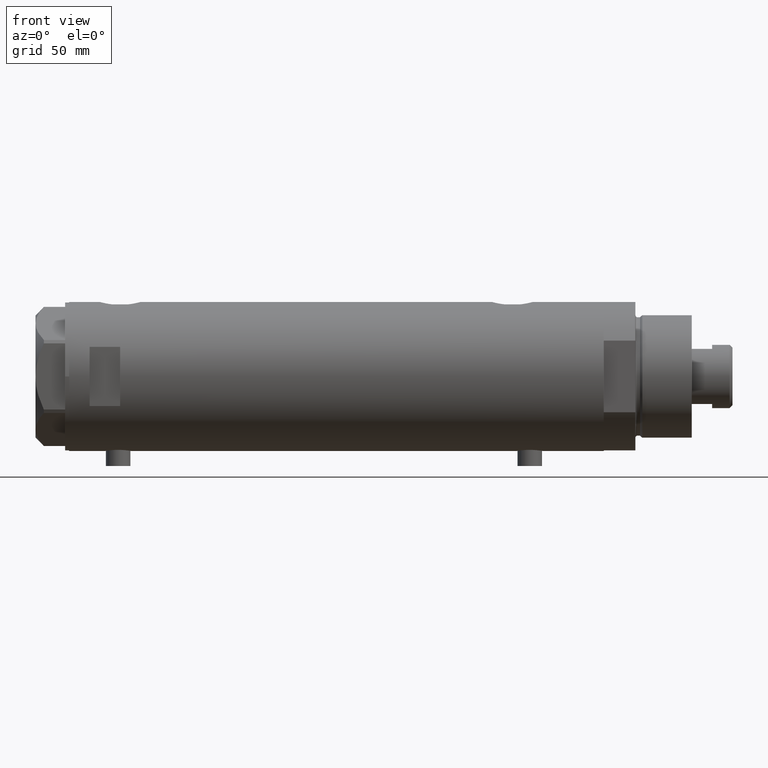
[diagram: clean part render]
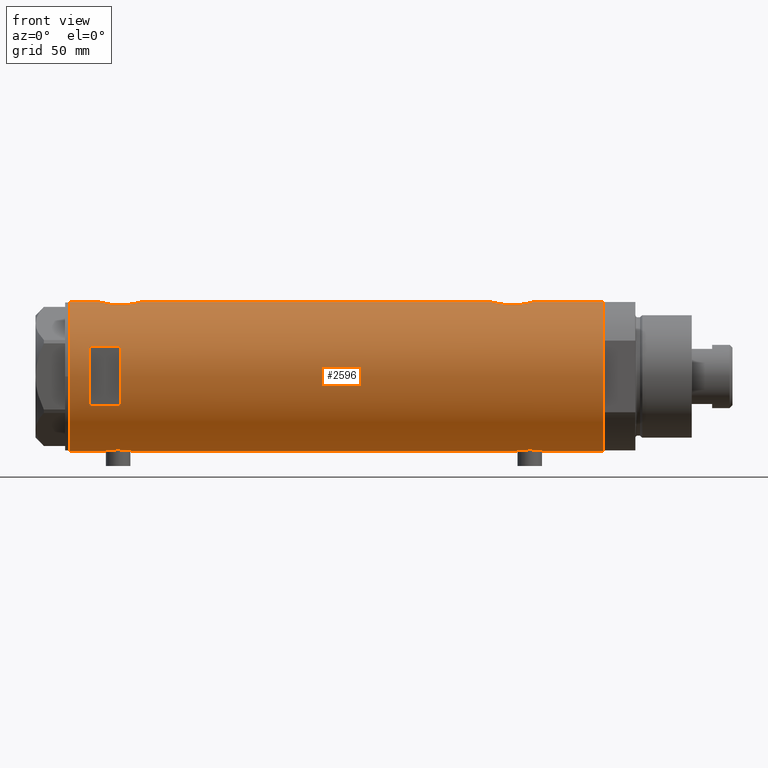
[diagram: same view with one face highlighted and labeled with its STEP entity id]
A machine part, front view. The second image highlights one B-rep face of the part: STEP entity #2596.
In plain terms, the highlighted cylindrical surface (partial cylindrical patch) has radius 36.5 mm, axis along (-1, -0, 0).
Its self-contained STEP definition (entity closure, byte-faithful):
#21 = CARTESIAN_POINT ( 'NONE',  ( -36.36656776002988778, -3.137002187003158582, -89.25363590726368557 ) ) ;
#22 = ORIENTED_EDGE ( 'NONE', *, *, #3950, .F. ) ;
#29 = CARTESIAN_POINT ( 'NONE',  ( 36.44931971524465553, -1.985988150549293341, 115.7886686053176106 ) ) ;
#40 = CARTESIAN_POINT ( 'NONE',  ( -36.43335814606993495, -2.212659578761325463, -88.82623600830490318 ) ) ;
#45 = LINE ( 'NONE', #422, #3081 ) ;
#51 = EDGE_CURVE ( 'NONE', #708, #900, #3897, .T. ) ;
#52 = CARTESIAN_POINT ( 'NONE',  ( 36.50000000000000711, -0.5031001875915692700, 95.97500000000005116 ) ) ;
#53 = B_SPLINE_CURVE_WITH_KNOTS ( 'NONE', 3,
 ( #2573, #2528, #3324, #29, #1490, #1393, #4065, #1004, #1800, #4732, #2481, #4369, #3970, #2890, #4390, #644, #4023, #2122 ),
 .UNSPECIFIED., .F., .F.,
 ( 4, 2, 2, 2, 2, 2, 2, 2, 4 ),
 ( 0.01190956515753145012, 0.01339852714138290227, 0.01488748912523435441, 0.01637645110908580656, 0.01712093210101153090, 0.01786541309293725871, 0.01935437507678870739, 0.02084333706064015260, 0.02382126102834301526 ),
 .UNSPECIFIED. ) ;
#59 = VERTEX_POINT ( 'NONE', #2887 ) ;
#73 = DIRECTION ( 'NONE',  ( 1.000000000000000000, 0.000000000000000000, 0.000000000000000000 ) ) ;
#120 = VERTEX_POINT ( 'NONE', #308 ) ;
#131 = VERTEX_POINT ( 'NONE', #4743 ) ;
#140 = CARTESIAN_POINT ( 'NONE',  ( -36.50000000000001421, -0.4136690418839317762, 113.2250000000000512 ) ) ;
#150 = ORIENTED_EDGE ( 'NONE', *, *, #3985, .T. ) ;
#188 = CARTESIAN_POINT ( 'NONE',  ( -36.43335814606993495, -2.212659578761325463, 112.8237639916951309 ) ) ;
#198 = EDGE_CURVE ( 'NONE', #120, #972, #1067, .T. ) ;
#210 = CARTESIAN_POINT ( 'NONE',  ( -35.99695583620881933, -6.039273428153905776, 105.3527555501224384 ) ) ;
#212 = AXIS2_PLACEMENT_3D ( 'NONE', #4242, #1352, #3153 ) ;
#239 = CARTESIAN_POINT ( 'NONE',  ( -36.06605150775667568, -5.613853192123348101, 104.1973431172745705 ) ) ;
#252 = ORIENTED_EDGE ( 'NONE', *, *, #2401, .F. ) ;
#256 = CARTESIAN_POINT ( 'NONE',  ( 35.72742963626381396, -7.471989379615407323, -92.82562260412777277 ) ) ;
#260 = VERTEX_POINT ( 'NONE', #2546 ) ;
#276 = CARTESIAN_POINT ( 'NONE',  ( -36.19666146462960654, -4.704890678739094945, -98.80929859510784752 ) ) ;
#308 = CARTESIAN_POINT ( 'NONE',  ( 35.29999999999999716, -9.282241108697837362, -89.89521504754763725 ) ) ;
#314 = CARTESIAN_POINT ( 'NONE',  ( 36.41918031349423757, -2.473644131148923009, -76.47311654536808589 ) ) ;
#341 = VERTEX_POINT ( 'NONE', #1059 ) ;
#358 = CARTESIAN_POINT ( 'NONE',  ( 36.18674680775578167, -4.776679548204626258, -77.38607683068754284 ) ) ;
#361 = CARTESIAN_POINT ( 'NONE',  ( 36.44881677724178104, -1.995085670027227032, 96.16319654630535751 ) ) ;
#422 = CARTESIAN_POINT ( 'NONE',  ( 36.50000000000000000, 0.000000000000000000, -130.9749999999999943 ) ) ;
#425 = CARTESIAN_POINT ( 'NONE',  ( 36.50000000000000000, 0.000000000000000000, 95.97500000000002274 ) ) ;
#472 = CARTESIAN_POINT ( 'NONE',  ( 0.000000000000000000, 0.000000000000000000, 105.9749999999999801 ) ) ;
#490 = CARTESIAN_POINT ( 'NONE',  ( -36.26616882068471170, -4.135065845178865551, 111.6791505594009806 ) ) ;
#516 = ORIENTED_EDGE ( 'NONE', *, *, #2513, .F. ) ;
#583 = CARTESIAN_POINT ( 'NONE',  ( 35.52320828895289395, -8.411622242316134646, -91.67272865944610771 ) ) ;
#587 = CARTESIAN_POINT ( 'NONE',  ( -36.09514898390870030, -5.426114745500164815, 110.1033865294614031 ) ) ;
#610 = EDGE_LOOP ( 'NONE', ( #3693, #1258, #1365, #2335, #4584, #2976, #1332, #1959, #4666, #1297, #150, #4756, #22, #516, #2666, #3115 ) ) ;
#638 = DIRECTION ( 'NONE',  ( 1.000000000000000000, 0.000000000000000000, 0.000000000000000000 ) ) ;
#644 = CARTESIAN_POINT ( 'NONE',  ( 35.52323553852023963, -8.411295122831250026, 111.4725239295108423 ) ) ;
#658 = CARTESIAN_POINT ( 'NONE',  ( -36.01675918113430441, -5.920026275461277798, -96.68939556517892697 ) ) ;
#663 = B_SPLINE_CURVE_WITH_KNOTS ( 'NONE', 3,
 ( #3749, #812, #2283, #4531, #2218, #2594, #2555, #4116, #3725, #3682, #2242, #4047, #720, #1875, #361, #3368, #52, #425 ),
 .UNSPECIFIED., .F., .F.,
 ( 4, 2, 2, 2, 2, 2, 2, 2, 4 ),
 ( -0.01189883390545606531, -0.008924125429092034240, -0.008180448310001031675, -0.007436771190910029979, -0.005949416952728023983, -0.004462062714546017987, -0.002974708476364010257, -0.001487354238182005128, 1.734723475976807094E-18 ),
 .UNSPECIFIED. ) ;
#708 = VERTEX_POINT ( 'NONE', #1465 ) ;
#720 = CARTESIAN_POINT ( 'NONE',  ( 36.34184199234172041, -3.427106516421255744, 96.56759086319968333 ) ) ;
#728 = CARTESIAN_POINT ( 'NONE',  ( -14.49137674618942739, -33.50000000000000000, -130.9749999999999943 ) ) ;
#731 = CARTESIAN_POINT ( 'NONE',  ( -36.50000000000000000, 1.603939656238031057E-15, -88.42499999999999716 ) ) ;
#756 = CARTESIAN_POINT ( 'NONE',  ( -36.44454782745417276, -2.020757099930494682, -88.75714135579003994 ) ) ;
#768 = CARTESIAN_POINT ( 'NONE',  ( 36.50000000000000000, 0.000000000000000000, -130.9749999999999943 ) ) ;
#812 = CARTESIAN_POINT ( 'NONE',  ( 35.39794035667548400, -8.909777761736840773, 101.3254584091054795 ) ) ;
#832 = VECTOR ( 'NONE', #4264, 1000.000000000000000 ) ;
#843 = VERTEX_POINT ( 'NONE', #3790 ) ;
#853 = CARTESIAN_POINT ( 'NONE',  ( -36.36656776002988778, -3.137002187003158582, 112.3963640927363343 ) ) ;
#888 = LINE ( 'NONE', #3477, #2217 ) ;
#898 = CARTESIAN_POINT ( 'NONE',  ( -36.16125812922425098, -4.962923794285024393, 110.7794608591076297 ) ) ;
#900 = VERTEX_POINT ( 'NONE', #3432 ) ;
#923 = EDGE_CURVE ( 'NONE', #4665, #4220, #3887, .T. ) ;
#925 = CARTESIAN_POINT ( 'NONE',  ( -36.44454782745417276, -2.020757099930494682, 112.8928586442100084 ) ) ;
#954 = CARTESIAN_POINT ( 'NONE',  ( 36.50000000000000000, 0.000000000000000000, -130.9749999999999943 ) ) ;
#958 = CARTESIAN_POINT ( 'NONE',  ( -14.49137674618942739, -33.50000000000000000, 105.9749999999999801 ) ) ;
#966 = CARTESIAN_POINT ( 'NONE',  ( 35.69273631926343882, -7.635692914629149008, -92.63700195651489366 ) ) ;
#972 = VERTEX_POINT ( 'NONE', #4381 ) ;
#977 = CARTESIAN_POINT ( 'NONE',  ( 35.52323553852023963, -8.411295122831250026, -80.67747607048910652 ) ) ;
#996 = CARTESIAN_POINT ( 'NONE',  ( 36.00068527486601511, -6.030855700422090848, -94.16701327127354659 ) ) ;
#1004 = CARTESIAN_POINT ( 'NONE',  ( 36.21540437201188922, -4.554727782332258279, 114.8809762908862950 ) ) ;
#1019 = CARTESIAN_POINT ( 'NONE',  ( -36.02823773219768810, -5.849994928883552880, -96.88455101485642729 ) ) ;
#1022 = CARTESIAN_POINT ( 'NONE',  ( 36.48960339336947101, -1.002724032967601708, -96.13724865973497913 ) ) ;
#1059 = CARTESIAN_POINT ( 'NONE',  ( 14.49137674618942739, -33.50000000000000000, 105.9749999999999801 ) ) ;
#1067 = B_SPLINE_CURVE_WITH_KNOTS ( 'NONE', 3,
 ( #4669, #2805, #583, #966, #256, #1712, #1359, #2835, #996, #3963, #3240, #4719, #1386, #2863, #4361, #1022, #2496, #3290 ),
 .UNSPECIFIED., .F., .F.,
 ( 4, 2, 2, 2, 2, 2, 2, 2, 4 ),
 ( -0.01189883390545606531, -0.008924125429092034240, -0.008180448310001031675, -0.007436771190910029979, -0.005949416952728023983, -0.004462062714546017987, -0.002974708476364010257, -0.001487354238182005128, 1.734723475976807094E-18 ),
 .UNSPECIFIED. ) ;
#1068 = CARTESIAN_POINT ( 'NONE',  ( -36.01639592019625979, -5.922235714778421034, -92.66703197573086470 ) ) ;
#1094 = EDGE_CURVE ( 'NONE', #3057, #2728, #888, .T. ) ;
#1100 = CARTESIAN_POINT ( 'NONE',  ( -36.50000000000000000, 4.469960816887838430E-15, -130.9749999999999943 ) ) ;
#1123 = CIRCLE ( 'NONE', #4698, 36.50000000000000000 ) ;
#1142 = CARTESIAN_POINT ( 'NONE',  ( -36.21356728133255842, -4.566014386638764577, -90.40237339235254410 ) ) ;
#1167 = VERTEX_POINT ( 'NONE', #958 ) ;
#1205 = LINE ( 'NONE', #4076, #3554 ) ;
#1243 = CARTESIAN_POINT ( 'NONE',  ( -36.49315367594273596, -0.8144497809045447845, 100.7646021444524962 ) ) ;
#1258 = ORIENTED_EDGE ( 'NONE', *, *, #2836, .T. ) ;
#1262 = CARTESIAN_POINT ( 'NONE',  ( -36.26692673949090562, -4.128477002029503851, 102.2650001256783554 ) ) ;
#1297 = ORIENTED_EDGE ( 'NONE', *, *, #3359, .F. ) ;
#1322 = DIRECTION ( 'NONE',  ( -0.000000000000000000, 0.000000000000000000, -1.000000000000000000 ) ) ;
#1332 = ORIENTED_EDGE ( 'NONE', *, *, #4671, .T. ) ;
#1338 = CARTESIAN_POINT ( 'NONE',  ( -35.96095902952617251, -6.249754054240900913, 106.5584123457953183 ) ) ;
#1352 = DIRECTION ( 'NONE',  ( 0.000000000000000000, 0.000000000000000000, 1.000000000000000000 ) ) ;
#1359 = CARTESIAN_POINT ( 'NONE',  ( 35.83108131285856501, -6.958268797611358636, -93.36130783372827580 ) ) ;
#1365 = ORIENTED_EDGE ( 'NONE', *, *, #3745, .T. ) ;
#1378 = CIRCLE ( 'NONE', #4175, 36.50000000000000000 ) ;
#1380 = CARTESIAN_POINT ( 'NONE',  ( -36.50000000000000000, 4.469960493350315609E-15, 100.7250000000000085 ) ) ;
#1383 = CARTESIAN_POINT ( 'NONE',  ( -36.30176144752229561, -3.814344296723636951, -99.64301701950256529 ) ) ;
#1386 = CARTESIAN_POINT ( 'NONE',  ( 36.34184199234172041, -3.427106516421255744, -95.58240913680032236 ) ) ;
#1393 = CARTESIAN_POINT ( 'NONE',  ( 36.34247810649306132, -3.420510937483959513, 115.3848651840172721 ) ) ;
#1403 = CARTESIAN_POINT ( 'NONE',  ( -35.96816095843705341, -6.208699946936198977, -95.49996377127786218 ) ) ;
#1410 = CARTESIAN_POINT ( 'NONE',  ( 35.29999999999999716, -9.282241108697837362, -82.45478495245237127 ) ) ;
#1423 = CARTESIAN_POINT ( 'NONE',  ( -36.26616882068471170, -4.135065845178865551, -89.97084944059909617 ) ) ;
#1430 = CARTESIAN_POINT ( 'NONE',  ( 0.000000000000000000, 0.000000000000000000, 130.9749999999999943 ) ) ;
#1433 = CARTESIAN_POINT ( 'NONE',  ( 35.72583162417570435, -7.484316398521980496, -79.52457356280497436 ) ) ;
#1450 = CARTESIAN_POINT ( 'NONE',  ( -36.16125812922425098, -4.962923794285024393, -90.87053914089241857 ) ) ;
#1465 = CARTESIAN_POINT ( 'NONE',  ( 36.50000000000000000, 4.344614706140975428E-19, -76.17500000000001137 ) ) ;
#1480 = CARTESIAN_POINT ( 'NONE',  ( -36.39621039793029666, -2.776267550998806843, -89.06069246893223124 ) ) ;
#1486 = CARTESIAN_POINT ( 'NONE',  ( -36.50000000000000000, 4.469960493350315609E-15, -100.9250000000000114 ) ) ;
#1490 = CARTESIAN_POINT ( 'NONE',  ( 36.41918031349423757, -2.473644131148923009, 115.6768834546318914 ) ) ;
#1494 = VERTEX_POINT ( 'NONE', #4683 ) ;
#1517 = CIRCLE ( 'NONE', #3462, 36.50000000000000000 ) ;
#1567 = CARTESIAN_POINT ( 'NONE',  ( 36.50000000000000000, 0.000000000000000000, -130.9749999999999943 ) ) ;
#1600 = CARTESIAN_POINT ( 'NONE',  ( -36.39558535855674393, -2.764807686268001774, 101.3660588145439050 ) ) ;
#1621 = CARTESIAN_POINT ( 'NONE',  ( -36.02782481185206365, -5.852531070448506512, 109.1777700895219425 ) ) ;
#1625 = VERTEX_POINT ( 'NONE', #4077 ) ;
#1641 = CARTESIAN_POINT ( 'NONE',  ( -36.40915499150419521, -2.580495338846545472, 101.2789498664452594 ) ) ;
#1668 = CARTESIAN_POINT ( 'NONE',  ( -36.06543684817881257, -5.617774235967367247, 109.7445444797170353 ) ) ;
#1676 = DIRECTION ( 'NONE',  ( 0.000000000000000000, 0.000000000000000000, 1.000000000000000000 ) ) ;
#1694 = CARTESIAN_POINT ( 'NONE',  ( -36.30107494031872051, -3.820993528321233068, 111.9380615353631185 ) ) ;
#1712 = CARTESIAN_POINT ( 'NONE',  ( 35.79656810172926384, -7.133411935499478496, -93.18754878557678012 ) ) ;
#1735 = CARTESIAN_POINT ( 'NONE',  ( -36.36635911126388265, -3.125815113635437292, -100.0910560040790500 ) ) ;
#1745 = VECTOR ( 'NONE', #2536, 1000.000000000000000 ) ;
#1751 = DIRECTION ( 'NONE',  ( 0.000000000000000000, 0.000000000000000000, 1.000000000000000000 ) ) ;
#1762 = LINE ( 'NONE', #728, #1745 ) ;
#1777 = CARTESIAN_POINT ( 'NONE',  ( 36.48988302519020266, -0.9927202255321166957, -76.21173010588698560 ) ) ;
#1800 = CARTESIAN_POINT ( 'NONE',  ( 36.18674680775578167, -4.776679548204626258, 114.7639231693124771 ) ) ;
#1812 = CARTESIAN_POINT ( 'NONE',  ( -35.98821803976956346, -6.090959022952117330, -93.25926116850584435 ) ) ;
#1823 = CARTESIAN_POINT ( 'NONE',  ( 36.00092304812866217, -6.029438422680412302, -78.18191844426350201 ) ) ;
#1840 = LINE ( 'NONE', #1567, #4009 ) ;
#1862 = CARTESIAN_POINT ( 'NONE',  ( -36.30107494031872051, -3.820993528321233068, -89.71193846463694399 ) ) ;
#1875 = CARTESIAN_POINT ( 'NONE',  ( 36.41856252531823657, -2.482507212621166470, 96.27543487153492663 ) ) ;
#1959 = ORIENTED_EDGE ( 'NONE', *, *, #4273, .F. ) ;
#1965 = CARTESIAN_POINT ( 'NONE',  ( -36.46417279006304568, -1.628689148039109247, 113.0125393869382009 ) ) ;
#2026 = LINE ( 'NONE', #954, #3079 ) ;
#2067 = CARTESIAN_POINT ( 'NONE',  ( -36.49999999999999289, -0.4082012689449562859, 100.7250000000000085 ) ) ;
#2107 = EDGE_CURVE ( 'NONE', #260, #1494, #1123, .T. ) ;
#2110 = CARTESIAN_POINT ( 'NONE',  ( -36.39558535855674393, -2.764807686268001774, -100.2839411854561149 ) ) ;
#2122 = CARTESIAN_POINT ( 'NONE',  ( 35.29999999999999716, -9.282241108697837362, 109.6952150475476486 ) ) ;
#2134 = EDGE_CURVE ( 'NONE', #4220, #3694, #4022, .T. ) ;
#2172 = CARTESIAN_POINT ( 'NONE',  ( 36.34247810649306132, -3.420510937483959513, -76.76513481598273358 ) ) ;
#2196 = CARTESIAN_POINT ( 'NONE',  ( 36.50000000000000000, 0.000000000000000000, 95.97500000000002274 ) ) ;
#2211 = AXIS2_PLACEMENT_3D ( 'NONE', #3268, #3964, #638 ) ;
#2217 = VECTOR ( 'NONE', #3427, 1000.000000000000000 ) ;
#2218 = CARTESIAN_POINT ( 'NONE',  ( 35.72742963626381396, -7.471989379615407323, 99.32437739587226133 ) ) ;
#2229 = CARTESIAN_POINT ( 'NONE',  ( -35.99659093586380010, -6.041447834568799635, -93.06077587985177502 ) ) ;
#2242 = CARTESIAN_POINT ( 'NONE',  ( 36.18850502651835654, -4.779575967213809840, 97.17720847109845295 ) ) ;
#2275 = LINE ( 'NONE', #2983, #3008 ) ;
#2283 = CARTESIAN_POINT ( 'NONE',  ( 35.52320828895289395, -8.411622242316134646, 100.4772713405539122 ) ) ;
#2291 = CIRCLE ( 'NONE', #212, 36.50000000000000000 ) ;
#2331 = CARTESIAN_POINT ( 'NONE',  ( -36.36635911126388265, -3.125815113635437292, 101.5589439959209983 ) ) ;
#2335 = ORIENTED_EDGE ( 'NONE', *, *, #198, .F. ) ;
#2349 = CARTESIAN_POINT ( 'NONE',  ( -35.99659093586380010, -6.041447834568799635, 108.5892241201482591 ) ) ;
#2356 = VECTOR ( 'NONE', #1751, 1000.000000000000000 ) ;
#2368 = VECTOR ( 'NONE', #1676, 1000.000000000000000 ) ;
#2379 = CARTESIAN_POINT ( 'NONE',  ( -36.50000000000000000, 1.603939656238031057E-15, 113.2250000000000227 ) ) ;
#2397 = CARTESIAN_POINT ( 'NONE',  ( -35.98855750525641639, -6.088954600884530777, 105.5506977384983429 ) ) ;
#2401 = EDGE_CURVE ( 'NONE', #1167, #341, #1517, .T. ) ;
#2417 = CARTESIAN_POINT ( 'NONE',  ( -36.19599073318030236, -4.702920041824403263, 111.0965383167658018 ) ) ;
#2420 = VERTEX_POINT ( 'NONE', #768 ) ;
#2452 = CARTESIAN_POINT ( 'NONE',  ( 35.39807338191549491, -8.909271871950329214, -81.52419617267214846 ) ) ;
#2481 = CARTESIAN_POINT ( 'NONE',  ( 36.09633718678917802, -5.417295330713078449, 114.3841486734521595 ) ) ;
#2492 = CARTESIAN_POINT ( 'NONE',  ( -36.40915499150419521, -2.580495338846545472, -100.3710501335547747 ) ) ;
#2496 = CARTESIAN_POINT ( 'NONE',  ( 36.50000000000000711, -0.5031001875915692700, -96.17500000000001137 ) ) ;
#2513 = EDGE_CURVE ( 'NONE', #3694, #59, #4451, .T. ) ;
#2528 = CARTESIAN_POINT ( 'NONE',  ( 36.50000000000000711, -0.4962708696651116913, 115.9750000000000085 ) ) ;
#2536 = DIRECTION ( 'NONE',  ( -0.000000000000000000, -0.000000000000000000, -1.000000000000000000 ) ) ;
#2541 = CARTESIAN_POINT ( 'NONE',  ( -35.96087392089862789, -6.250243747806517369, -94.26582509223820239 ) ) ;
#2546 = CARTESIAN_POINT ( 'NONE',  ( 14.49137674618942739, -33.50000000000000000, 120.9749999999999943 ) ) ;
#2551 = CARTESIAN_POINT ( 'NONE',  ( 36.12724769814495573, -5.207618053557754756, -77.63435879511536086 ) ) ;
#2555 = CARTESIAN_POINT ( 'NONE',  ( 35.83108131285856501, -6.958268797611358636, 98.78869216627177252 ) ) ;
#2563 = CARTESIAN_POINT ( 'NONE',  ( -36.06543684817881257, -5.617774235967367247, -91.90545552028302723 ) ) ;
#2573 = CARTESIAN_POINT ( 'NONE',  ( 36.50000000000000000, 4.344614706140975428E-19, 115.9750000000000085 ) ) ;
#2581 = DIRECTION ( 'NONE',  ( 0.000000000000000000, 0.000000000000000000, 1.000000000000000000 ) ) ;
#2582 = CARTESIAN_POINT ( 'NONE',  ( -36.19599073318030236, -4.702920041824403263, -90.55346168323423228 ) ) ;
#2594 = CARTESIAN_POINT ( 'NONE',  ( 35.79656810172926384, -7.133411935499478496, 98.96245121442325399 ) ) ;
#2596 = ADVANCED_FACE ( 'NONE', ( #2837, #3675 ), #4335, .T. ) ;
#2609 = CARTESIAN_POINT ( 'NONE',  ( -36.49297138689434661, -0.8222528563518530786, -88.46566887946569580 ) ) ;
#2666 = ORIENTED_EDGE ( 'NONE', *, *, #2134, .F. ) ;
#2706 = CARTESIAN_POINT ( 'NONE',  ( -36.14410773716529235, -5.085921866747754372, 110.6133587842047490 ) ) ;
#2726 = CARTESIAN_POINT ( 'NONE',  ( -36.19666146462960654, -4.704890678739094945, 102.8407014048922008 ) ) ;
#2728 = VERTEX_POINT ( 'NONE', #4128 ) ;
#2785 = CARTESIAN_POINT ( 'NONE',  ( -36.46614432713124643, -1.622933015999963313, 100.9253340261315515 ) ) ;
#2792 = DIRECTION ( 'NONE',  ( 1.000000000000000000, 0.000000000000000000, 0.000000000000000000 ) ) ;
#2805 = CARTESIAN_POINT ( 'NONE',  ( 35.39794035667548400, -8.909777761736840773, -90.82454159089456880 ) ) ;
#2812 = CARTESIAN_POINT ( 'NONE',  ( 35.93373217836897737, -6.415110096330620237, -78.48795733644904260 ) ) ;
#2831 = CARTESIAN_POINT ( 'NONE',  ( -36.49315367594273596, -0.8144497809045447845, -100.8853978555475237 ) ) ;
#2835 = CARTESIAN_POINT ( 'NONE',  ( 35.93363298843768661, -6.415574104180976178, -93.86151472888892044 ) ) ;
#2836 = EDGE_CURVE ( 'NONE', #4670, #2420, #2291, .T. ) ;
#2837 = FACE_OUTER_BOUND ( 'NONE', #610, .T. ) ;
#2860 = CARTESIAN_POINT ( 'NONE',  ( -36.09582946723050867, -5.421573071064194060, -97.81108278370489018 ) ) ;
#2863 = CARTESIAN_POINT ( 'NONE',  ( 36.41856252531823657, -2.482507212621166470, -95.87456512846500800 ) ) ;
#2881 = CARTESIAN_POINT ( 'NONE',  ( -35.96095902952617251, -6.249754054240900913, -95.09158765420471582 ) ) ;
#2887 = CARTESIAN_POINT ( 'NONE',  ( -36.50000000000000000, 1.603939656238031057E-15, 113.2250000000000227 ) ) ;
#2890 = CARTESIAN_POINT ( 'NONE',  ( 35.79638309643555516, -7.141827709208434349, 112.9920192696954473 ) ) ;
#2903 = CARTESIAN_POINT ( 'NONE',  ( -36.46417279006304568, -1.628689148039109247, -88.63746061306186164 ) ) ;
#2913 = DIRECTION ( 'NONE',  ( 0.000000000000000000, 0.000000000000000000, 1.000000000000000000 ) ) ;
#2954 = CARTESIAN_POINT ( 'NONE',  ( -36.47262891311153510, -1.427622242603855396, -88.58675370788300540 ) ) ;
#2974 = EDGE_CURVE ( 'NONE', #1494, #1167, #1762, .T. ) ;
#2976 = ORIENTED_EDGE ( 'NONE', *, *, #51, .F. ) ;
#2983 = CARTESIAN_POINT ( 'NONE',  ( 14.49137674618942739, -33.50000000000000000, -130.9749999999999943 ) ) ;
#3008 = VECTOR ( 'NONE', #3361, 1000.000000000000000 ) ;
#3057 = VERTEX_POINT ( 'NONE', #4585 ) ;
#3079 = VECTOR ( 'NONE', #3845, 1000.000000000000000 ) ;
#3081 = VECTOR ( 'NONE', #2913, 1000.000000000000000 ) ;
#3085 = CARTESIAN_POINT ( 'NONE',  ( -36.21356728133255842, -4.566014386638764577, 111.2476266076474900 ) ) ;
#3108 = CARTESIAN_POINT ( 'NONE',  ( -36.39621039793029666, -2.776267550998806843, 112.5893075310678029 ) ) ;
#3115 = ORIENTED_EDGE ( 'NONE', *, *, #923, .F. ) ;
#3153 = DIRECTION ( 'NONE',  ( 1.000000000000000000, 0.000000000000000000, 0.000000000000000000 ) ) ;
#3167 = CARTESIAN_POINT ( 'NONE',  ( -36.49297138689434661, -0.8222528563518530786, 113.1843311205343809 ) ) ;
#3176 = CARTESIAN_POINT ( 'NONE',  ( -36.50000000000000000, 4.469960816887838430E-15, -130.9749999999999943 ) ) ;
#3188 = CARTESIAN_POINT ( 'NONE',  ( -35.96816095843705341, -6.208699946936198977, 106.1500362287221151 ) ) ;
#3206 = CARTESIAN_POINT ( 'NONE',  ( -36.49999999999999289, -0.4082012689449562859, -100.9249999999999972 ) ) ;
#3233 = CARTESIAN_POINT ( 'NONE',  ( -36.16096637594732499, -4.968588355849258953, -98.48834492817761088 ) ) ;
#3240 = CARTESIAN_POINT ( 'NONE',  ( 36.18850502651835654, -4.779575967213809840, -94.97279152890152432 ) ) ;
#3253 = EDGE_CURVE ( 'NONE', #120, #900, #3870, .T. ) ;
#3264 = CARTESIAN_POINT ( 'NONE',  ( -35.99695583620881933, -6.039273428153905776, -96.29724444987758147 ) ) ;
#3268 = CARTESIAN_POINT ( 'NONE',  ( 0.000000000000000000, 0.000000000000000000, -130.9749999999999943 ) ) ;
#3290 = CARTESIAN_POINT ( 'NONE',  ( 36.50000000000000000, 0.000000000000000000, -96.17499999999999716 ) ) ;
#3320 = CARTESIAN_POINT ( 'NONE',  ( 36.44931971524465553, -1.985988150549293341, -76.36133139468236664 ) ) ;
#3324 = CARTESIAN_POINT ( 'NONE',  ( 36.48988302519020266, -0.9927202255321166957, 115.9382698941130343 ) ) ;
#3336 = CARTESIAN_POINT ( 'NONE',  ( -35.96794010939611752, -6.209972807992079069, -93.85944451008649025 ) ) ;
#3357 = EDGE_LOOP ( 'NONE', ( #252, #4385, #4518, #4509 ) ) ;
#3359 = EDGE_CURVE ( 'NONE', #1625, #2728, #53, .T. ) ;
#3361 = DIRECTION ( 'NONE',  ( 0.000000000000000000, 0.000000000000000000, 1.000000000000000000 ) ) ;
#3368 = CARTESIAN_POINT ( 'NONE',  ( 36.48960339336947101, -1.002724032967601708, 96.01275134026502656 ) ) ;
#3416 = CARTESIAN_POINT ( 'NONE',  ( -36.50000000000000000, 1.603939656238031057E-15, -88.42499999999999716 ) ) ;
#3427 = DIRECTION ( 'NONE',  ( 0.000000000000000000, 0.000000000000000000, 1.000000000000000000 ) ) ;
#3432 = CARTESIAN_POINT ( 'NONE',  ( 35.29999999999999716, -9.282241108697837362, -82.45478495245237127 ) ) ;
#3460 = CARTESIAN_POINT ( 'NONE',  ( -35.96794010939611752, -6.209972807992079069, 107.7905554899135581 ) ) ;
#3462 = AXIS2_PLACEMENT_3D ( 'NONE', #472, #4455, #4482 ) ;
#3477 = CARTESIAN_POINT ( 'NONE',  ( 35.29999999999999716, -9.282241108697837362, -130.9749999999999943 ) ) ;
#3491 = CARTESIAN_POINT ( 'NONE',  ( -36.01639592019625979, -5.922235714778421034, 108.9829680242691268 ) ) ;
#3510 = CARTESIAN_POINT ( 'NONE',  ( -35.96087392089862789, -6.250243747806517369, 107.3841749077618317 ) ) ;
#3540 = CARTESIAN_POINT ( 'NONE',  ( 35.29999999999999716, -9.282241108697837362, -130.9749999999999943 ) ) ;
#3554 = VECTOR ( 'NONE', #3715, 1000.000000000000000 ) ;
#3560 = CARTESIAN_POINT ( 'NONE',  ( -36.50000000000000000, 4.469960493350315609E-15, 100.7250000000000085 ) ) ;
#3583 = CARTESIAN_POINT ( 'NONE',  ( 35.79638309643555516, -7.141827709208434349, -79.15798073030454418 ) ) ;
#3593 = CARTESIAN_POINT ( 'NONE',  ( -36.26692673949090562, -4.128477002029503851, -99.38499987432169291 ) ) ;
#3602 = CARTESIAN_POINT ( 'NONE',  ( 36.29582892817134621, -3.881628320031159873, -76.94565565465011048 ) ) ;
#3670 = CARTESIAN_POINT ( 'NONE',  ( -36.02782481185206365, -5.852531070448506512, -92.47222991047810581 ) ) ;
#3675 = FACE_BOUND ( 'NONE', #3357, .T. ) ;
#3679 = CARTESIAN_POINT ( 'NONE',  ( 36.50000000000000711, -0.4962708696651116913, -76.17500000000002558 ) ) ;
#3682 = CARTESIAN_POINT ( 'NONE',  ( 36.12792682573228831, -5.214735277442335004, 97.42806882011304026 ) ) ;
#3693 = ORIENTED_EDGE ( 'NONE', *, *, #3794, .F. ) ;
#3694 = VERTEX_POINT ( 'NONE', #1380 ) ;
#3715 = DIRECTION ( 'NONE',  ( 0.000000000000000000, 0.000000000000000000, 1.000000000000000000 ) ) ;
#3725 = CARTESIAN_POINT ( 'NONE',  ( 36.00068527486601511, -6.030855700422090848, 97.98298672872648751 ) ) ;
#3743 = CARTESIAN_POINT ( 'NONE',  ( -36.50000000000000000, 4.469960816887838430E-15, -130.9749999999999943 ) ) ;
#3745 = EDGE_CURVE ( 'NONE', #2420, #972, #1840, .T. ) ;
#3749 = CARTESIAN_POINT ( 'NONE',  ( 35.29999999999999716, -9.282241108697837362, 102.2547849524523826 ) ) ;
#3790 = CARTESIAN_POINT ( 'NONE',  ( 36.50000000000000000, 0.000000000000000000, 130.9749999999999943 ) ) ;
#3794 = EDGE_CURVE ( 'NONE', #4670, #4665, #1205, .T. ) ;
#3814 = CARTESIAN_POINT ( 'NONE',  ( -36.30176144752229561, -3.814344296723636951, 102.0069829804974546 ) ) ;
#3845 = DIRECTION ( 'NONE',  ( 0.000000000000000000, 0.000000000000000000, 1.000000000000000000 ) ) ;
#3862 = CARTESIAN_POINT ( 'NONE',  ( -36.09582946723050867, -5.421573071064194060, 103.8389172162951581 ) ) ;
#3870 = LINE ( 'NONE', #3540, #2368 ) ;
#3882 = CARTESIAN_POINT ( 'NONE',  ( -35.98821803976956346, -6.090959022952117330, 108.3907388314942040 ) ) ;
#3887 = B_SPLINE_CURVE_WITH_KNOTS ( 'NONE', 3,
 ( #4716, #3206, #2831, #4329, #3960, #2492, #2110, #1735, #3981, #1383, #3593, #276, #3233, #2860, #4359, #1019, #658, #3264, #4742, #1403, #2881, #2541, #3336, #1812, #2229, #1068, #3670, #2563, #4105, #4429, #1450, #2582, #1142, #1423, #1862, #21, #1480, #40, #756, #2903, #2954, #2609, #4472, #731 ),
 .UNSPECIFIED., .F., .F.,
 ( 4, 2, 2, 2, 2, 2, 2, 2, 2, 2, 2, 2, 2, 2, 2, 2, 2, 2, 2, 2, 2, 4 ),
 ( 0.01957644481942643136, 0.02079966591703043266, 0.02202288701463443049, 0.02263449756343642941, 0.02324610811223842832, 0.02446932920984242615, 0.02569255030744642398, 0.02691577140505042529, 0.02752738195385242420, 0.02813899250265442659, 0.02936221360025846605, 0.03058543469786250205, 0.03119704524666452178, 0.03180865579546654498, 0.03303187689307057751, 0.03364348744187262152, 0.03425509799067465166, 0.03547831908827869807, 0.03670154018588274447, 0.03731315073468477461, 0.03792476128348679781, 0.03914798238109084422 ),
 .UNSPECIFIED. ) ;
#3897 = B_SPLINE_CURVE_WITH_KNOTS ( 'NONE', 3,
 ( #4749, #3679, #1777, #3320, #314, #2172, #3602, #4307, #358, #2551, #4043, #1823, #2812, #3583, #1433, #977, #2452, #1410 ),
 .UNSPECIFIED., .F., .F.,
 ( 4, 2, 2, 2, 2, 2, 2, 2, 4 ),
 ( 0.01190956515753145012, 0.01339852714138290227, 0.01488748912523435441, 0.01637645110908580656, 0.01712093210101153090, 0.01786541309293725871, 0.01935437507678870739, 0.02084333706064015260, 0.02382126102834301526 ),
 .UNSPECIFIED. ) ;
#3909 = CARTESIAN_POINT ( 'NONE',  ( -36.16096637594732499, -4.968588355849258953, 103.1616550718224374 ) ) ;
#3950 = EDGE_CURVE ( 'NONE', #59, #131, #4212, .T. ) ;
#3960 = CARTESIAN_POINT ( 'NONE',  ( -36.44621655743049615, -2.016281777336074832, -100.6048297669911591 ) ) ;
#3963 = CARTESIAN_POINT ( 'NONE',  ( 36.12792682573228831, -5.214735277442335004, -94.72193117988697963 ) ) ;
#3964 = DIRECTION ( 'NONE',  ( 0.000000000000000000, 0.000000000000000000, 1.000000000000000000 ) ) ;
#3970 = CARTESIAN_POINT ( 'NONE',  ( 35.93373217836897737, -6.415110096330620237, 113.6620426635509205 ) ) ;
#3981 = CARTESIAN_POINT ( 'NONE',  ( -36.35061318816141096, -3.303361544904982239, -99.98464041943020675 ) ) ;
#3985 = EDGE_CURVE ( 'NONE', #1625, #843, #2026, .T. ) ;
#4009 = VECTOR ( 'NONE', #2581, 1000.000000000000000 ) ;
#4022 = LINE ( 'NONE', #1100, #2356 ) ;
#4023 = CARTESIAN_POINT ( 'NONE',  ( 35.39807338191549491, -8.909271871950329214, 110.6258038273278430 ) ) ;
#4041 = DIRECTION ( 'NONE',  ( 0.000000000000000000, 0.000000000000000000, 1.000000000000000000 ) ) ;
#4043 = CARTESIAN_POINT ( 'NONE',  ( 36.09633718678917802, -5.417295330713078449, -77.76585132654788879 ) ) ;
#4047 = CARTESIAN_POINT ( 'NONE',  ( 36.29527920868844859, -3.886508670267145416, 96.74783724169137145 ) ) ;
#4065 = CARTESIAN_POINT ( 'NONE',  ( 36.29582892817134621, -3.881628320031159873, 115.2043443453498952 ) ) ;
#4076 = CARTESIAN_POINT ( 'NONE',  ( -36.50000000000000000, 4.469960816887838430E-15, -130.9749999999999943 ) ) ;
#4077 = CARTESIAN_POINT ( 'NONE',  ( 36.50000000000000000, 4.344614706140975428E-19, 115.9750000000000085 ) ) ;
#4105 = CARTESIAN_POINT ( 'NONE',  ( -36.09514898390870030, -5.426114745500164815, -91.54661347053861675 ) ) ;
#4116 = CARTESIAN_POINT ( 'NONE',  ( 35.93363298843768661, -6.415574104180976178, 98.28848527111112787 ) ) ;
#4128 = CARTESIAN_POINT ( 'NONE',  ( 35.29999999999999716, -9.282241108697837362, 109.6952150475476486 ) ) ;
#4171 = VERTEX_POINT ( 'NONE', #2196 ) ;
#4175 = AXIS2_PLACEMENT_3D ( 'NONE', #1430, #4041, #73 ) ;
#4185 = CARTESIAN_POINT ( 'NONE',  ( -36.44621655743049615, -2.016281777336074832, 101.0451702330088608 ) ) ;
#4212 = LINE ( 'NONE', #3176, #832 ) ;
#4220 = VERTEX_POINT ( 'NONE', #3416 ) ;
#4225 = CARTESIAN_POINT ( 'NONE',  ( -36.01675918113430441, -5.920026275461277798, 104.9606044348211213 ) ) ;
#4242 = CARTESIAN_POINT ( 'NONE',  ( 0.000000000000000000, 0.000000000000000000, -130.9749999999999943 ) ) ;
#4264 = DIRECTION ( 'NONE',  ( 0.000000000000000000, 0.000000000000000000, 1.000000000000000000 ) ) ;
#4273 = EDGE_CURVE ( 'NONE', #3057, #4171, #663, .T. ) ;
#4279 = CARTESIAN_POINT ( 'NONE',  ( -36.47262891311153510, -1.427622242603855396, 113.0632462921170571 ) ) ;
#4307 = CARTESIAN_POINT ( 'NONE',  ( 36.21540437201188922, -4.554727782332258279, -77.26902370911375328 ) ) ;
#4329 = CARTESIAN_POINT ( 'NONE',  ( -36.46614432713124643, -1.622933015999963313, -100.7246659738684826 ) ) ;
#4335 = CYLINDRICAL_SURFACE ( 'NONE', #2211, 36.50000000000000000 ) ;
#4359 = CARTESIAN_POINT ( 'NONE',  ( -36.06605150775667568, -5.613853192123348101, -97.45265688272546356 ) ) ;
#4361 = CARTESIAN_POINT ( 'NONE',  ( 36.44881677724178104, -1.995085670027227032, -95.98680345369464817 ) ) ;
#4369 = CARTESIAN_POINT ( 'NONE',  ( 36.00092304812866217, -6.029438422680412302, 113.9680815557365037 ) ) ;
#4381 = CARTESIAN_POINT ( 'NONE',  ( 36.50000000000000000, 0.000000000000000000, -96.17499999999999716 ) ) ;
#4385 = ORIENTED_EDGE ( 'NONE', *, *, #2974, .F. ) ;
#4390 = CARTESIAN_POINT ( 'NONE',  ( 35.72583162417570435, -7.484316398521980496, 112.6254264371949887 ) ) ;
#4429 = CARTESIAN_POINT ( 'NONE',  ( -36.14410773716529235, -5.085921866747754372, -91.03664121579531354 ) ) ;
#4451 = B_SPLINE_CURVE_WITH_KNOTS ( 'NONE', 3,
 ( #3560, #2067, #1243, #2785, #4185, #1641, #1600, #2331, #4576, #3814, #1262, #2726, #3909, #3862, #239, #4673, #4225, #210, #2397, #3188, #1338, #3510, #3460, #3882, #2349, #3491, #1621, #1668, #587, #2706, #898, #2417, #3085, #490, #1694, #853, #3108, #188, #925, #1965, #4279, #3167, #140, #2379 ),
 .UNSPECIFIED., .F., .F.,
 ( 4, 2, 2, 2, 2, 2, 2, 2, 2, 2, 2, 2, 2, 2, 2, 2, 2, 2, 2, 2, 2, 4 ),
 ( 0.01957644481942643136, 0.02079966591703043266, 0.02202288701463443049, 0.02263449756343642941, 0.02324610811223842832, 0.02446932920984242615, 0.02569255030744642398, 0.02691577140505042529, 0.02752738195385242420, 0.02813899250265442659, 0.02936221360025846605, 0.03058543469786250205, 0.03119704524666452178, 0.03180865579546654498, 0.03303187689307057751, 0.03364348744187262152, 0.03425509799067465166, 0.03547831908827869807, 0.03670154018588274447, 0.03731315073468477461, 0.03792476128348679781, 0.03914798238109084422 ),
 .UNSPECIFIED. ) ;
#4455 = DIRECTION ( 'NONE',  ( 0.000000000000000000, 0.000000000000000000, 1.000000000000000000 ) ) ;
#4472 = CARTESIAN_POINT ( 'NONE',  ( -36.50000000000001421, -0.4136690418839317762, -88.42499999999999716 ) ) ;
#4482 = DIRECTION ( 'NONE',  ( -1.000000000000000000, 0.000000000000000000, 0.000000000000000000 ) ) ;
#4509 = ORIENTED_EDGE ( 'NONE', *, *, #4697, .F. ) ;
#4518 = ORIENTED_EDGE ( 'NONE', *, *, #2107, .F. ) ;
#4531 = CARTESIAN_POINT ( 'NONE',  ( 35.69273631926343882, -7.635692914629149008, 99.51299804348514044 ) ) ;
#4576 = CARTESIAN_POINT ( 'NONE',  ( -36.35061318816141096, -3.303361544904982239, 101.6653595805698416 ) ) ;
#4584 = ORIENTED_EDGE ( 'NONE', *, *, #3253, .T. ) ;
#4585 = CARTESIAN_POINT ( 'NONE',  ( 35.29999999999999716, -9.282241108697837362, 102.2547849524523826 ) ) ;
#4655 = CARTESIAN_POINT ( 'NONE',  ( 0.000000000000000000, 0.000000000000000000, 120.9749999999999943 ) ) ;
#4665 = VERTEX_POINT ( 'NONE', #1486 ) ;
#4666 = ORIENTED_EDGE ( 'NONE', *, *, #1094, .T. ) ;
#4669 = CARTESIAN_POINT ( 'NONE',  ( 35.29999999999999716, -9.282241108697837362, -89.89521504754763725 ) ) ;
#4670 = VERTEX_POINT ( 'NONE', #3743 ) ;
#4671 = EDGE_CURVE ( 'NONE', #708, #4171, #45, .T. ) ;
#4673 = CARTESIAN_POINT ( 'NONE',  ( -36.02823773219768810, -5.849994928883552880, 104.7654489851435784 ) ) ;
#4683 = CARTESIAN_POINT ( 'NONE',  ( -14.49137674618942739, -33.50000000000000000, 120.9749999999999943 ) ) ;
#4697 = EDGE_CURVE ( 'NONE', #341, #260, #2275, .T. ) ;
#4698 = AXIS2_PLACEMENT_3D ( 'NONE', #4655, #1322, #2792 ) ;
#4716 = CARTESIAN_POINT ( 'NONE',  ( -36.50000000000000000, 4.469960493350315609E-15, -100.9250000000000114 ) ) ;
#4719 = CARTESIAN_POINT ( 'NONE',  ( 36.29527920868844859, -3.886508670267145416, -95.40216275830863424 ) ) ;
#4721 = EDGE_CURVE ( 'NONE', #131, #843, #1378, .T. ) ;
#4732 = CARTESIAN_POINT ( 'NONE',  ( 36.12724769814495573, -5.207618053557754756, 114.5156412048846732 ) ) ;
#4742 = CARTESIAN_POINT ( 'NONE',  ( -35.98855750525641639, -6.088954600884530777, -96.09930226150170540 ) ) ;
#4743 = CARTESIAN_POINT ( 'NONE',  ( -36.50000000000000000, 4.469960816887838430E-15, 130.9749999999999943 ) ) ;
#4749 = CARTESIAN_POINT ( 'NONE',  ( 36.50000000000000000, 4.344614706140975428E-19, -76.17500000000001137 ) ) ;
#4756 = ORIENTED_EDGE ( 'NONE', *, *, #4721, .F. ) ;